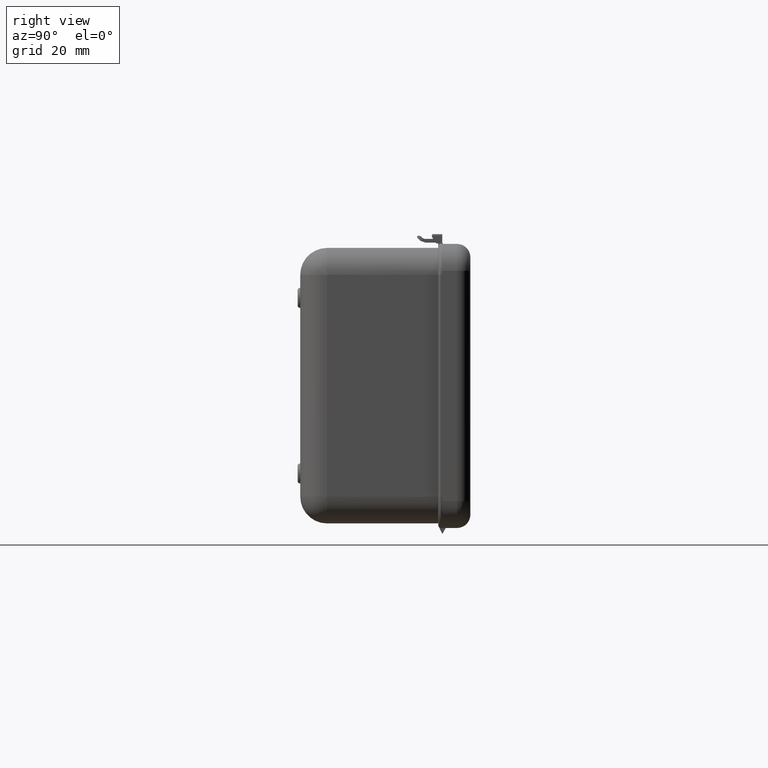
[diagram: clean part render]
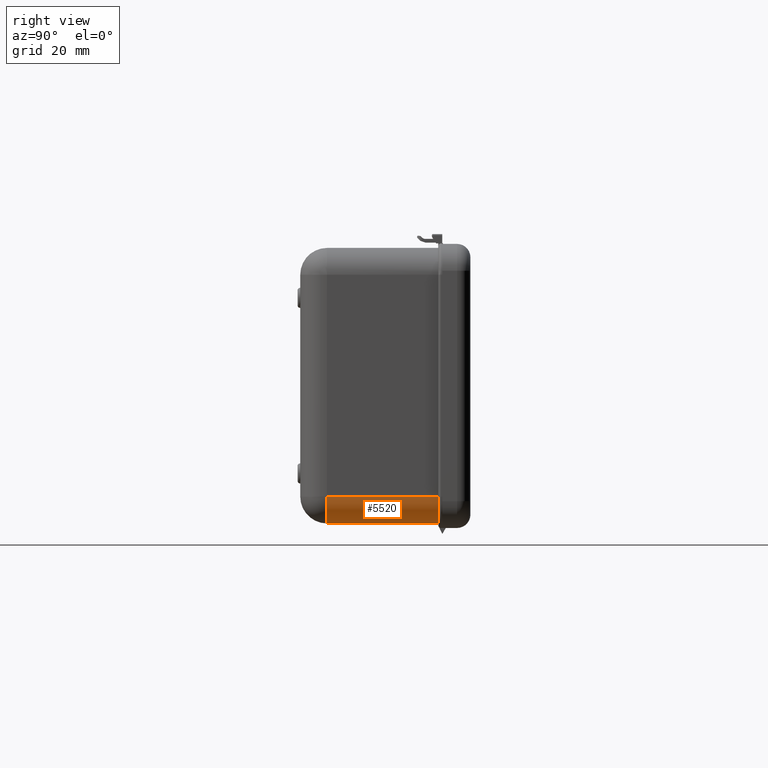
[diagram: same view with one face highlighted and labeled with its STEP entity id]
A machine part, right view. The second image highlights one B-rep face of the part: STEP entity #5520.
In plain terms, the highlighted cylindrical surface (edge-blend (fillet) strip) has radius 10 mm, axis along (0, 1, 0).
Its self-contained STEP definition (entity closure, byte-faithful):
#268 = AXIS2_PLACEMENT_3D ( 'NONE', #3481, #6883, #7710 ) ;
#489 = LINE ( 'NONE', #4133, #5873 ) ;
#731 = ORIENTED_EDGE ( 'NONE', *, *, #6963, .F. ) ;
#758 = LINE ( 'NONE', #2769, #5768 ) ;
#1176 = EDGE_CURVE ( 'NONE', #2924, #2805, #4488, .T. ) ;
#1194 = DIRECTION ( 'NONE',  ( 2.392722035830078479E-16, 1.000000000000000000, -0.0000000000000000000 ) ) ;
#1223 = CARTESIAN_POINT ( 'NONE',  ( 118.5000000000000284, -6.499999999999998224, -41.39999999999999858 ) ) ;
#1582 = DIRECTION ( 'NONE',  ( -1.000000000000000000, 0.0000000000000000000, 0.0000000000000000000 ) ) ;
#1638 = CARTESIAN_POINT ( 'NONE',  ( 108.5000000000000142, -48.00000000000000000, -51.39999999999999858 ) ) ;
#2735 = CARTESIAN_POINT ( 'NONE',  ( 118.5000000000000284, -6.499999999999998224, -41.39999999999999858 ) ) ;
#2769 = CARTESIAN_POINT ( 'NONE',  ( 108.5000000000000284, -2.596103408875635978E-14, -51.39999999999999858 ) ) ;
#2805 = VERTEX_POINT ( 'NONE', #6790 ) ;
#2924 = VERTEX_POINT ( 'NONE', #2735 ) ;
#3469 = VERTEX_POINT ( 'NONE', #5524 ) ;
#3481 = CARTESIAN_POINT ( 'NONE',  ( 108.5000000000000284, -2.596103408875635662E-14, -41.39999999999999858 ) ) ;
#3613 = EDGE_LOOP ( 'NONE', ( #5479, #731, #7958, #8936 ) ) ;
#3774 = EDGE_CURVE ( 'NONE', #3469, #9201, #5884, .T. ) ;
#4133 = CARTESIAN_POINT ( 'NONE',  ( 118.5000000000000284, -2.835375612458643352E-14, -41.39999999999999858 ) ) ;
#4168 = CARTESIAN_POINT ( 'NONE',  ( 108.5000000000000284, -6.499999999999997335, -51.39999999999999858 ) ) ;
#4248 = AXIS2_PLACEMENT_3D ( 'NONE', #7305, #5029, #1582 ) ;
#4488 =( BOUNDED_CURVE ( )  B_SPLINE_CURVE ( 3, ( #1223, #8296, #4726, #4168 ),
 .UNSPECIFIED., .F., .T. ) 
 B_SPLINE_CURVE_WITH_KNOTS ( ( 4, 4 ),
 ( 2.356194490192344837, 3.926990816987242283 ),
 .UNSPECIFIED. ) 
 CURVE ( )  GEOMETRIC_REPRESENTATION_ITEM ( )  RATIONAL_B_SPLINE_CURVE ( ( 1.000000000000000000, 0.8047378541243648264, 0.8047378541243648264, 1.000000000000000000 ) ) 
 REPRESENTATION_ITEM ( '' )  );
#4726 = CARTESIAN_POINT ( 'NONE',  ( 114.3578643762690774, -6.499999999999997335, -51.39999999999999858 ) ) ;
#5029 = DIRECTION ( 'NONE',  ( 2.392722035830078479E-16, 1.000000000000000000, -0.0000000000000000000 ) ) ;
#5479 = ORIENTED_EDGE ( 'NONE', *, *, #1176, .F. ) ;
#5520 = ADVANCED_FACE ( 'NONE', ( #7662 ), #6975, .T. ) ;
#5524 = CARTESIAN_POINT ( 'NONE',  ( 118.5000000000000142, -48.00000000000000000, -41.39999999999999858 ) ) ;
#5768 = VECTOR ( 'NONE', #9170, 1000.000000000000000 ) ;
#5873 = VECTOR ( 'NONE', #1194, 1000.000000000000000 ) ;
#5884 = CIRCLE ( 'NONE', #4248, 9.999999999999994671 ) ;
#5928 = EDGE_CURVE ( 'NONE', #2805, #9201, #758, .T. ) ;
#6790 = CARTESIAN_POINT ( 'NONE',  ( 108.5000000000000284, -6.499999999999997335, -51.39999999999999858 ) ) ;
#6883 = DIRECTION ( 'NONE',  ( 2.392722035830078479E-16, 1.000000000000000000, -0.0000000000000000000 ) ) ;
#6963 = EDGE_CURVE ( 'NONE', #3469, #2924, #489, .T. ) ;
#6975 = CYLINDRICAL_SURFACE ( 'NONE', #268, 9.999999999999994671 ) ;
#7305 = CARTESIAN_POINT ( 'NONE',  ( 108.5000000000000142, -48.00000000000000000, -41.39999999999999858 ) ) ;
#7662 = FACE_OUTER_BOUND ( 'NONE', #3613, .T. ) ;
#7710 = DIRECTION ( 'NONE',  ( -1.000000000000000000, 2.392722035830078479E-16, 0.0000000000000000000 ) ) ;
#7958 = ORIENTED_EDGE ( 'NONE', *, *, #3774, .T. ) ;
#8296 = CARTESIAN_POINT ( 'NONE',  ( 118.5000000000000284, -6.499999999999998224, -47.25786437626904757 ) ) ;
#8936 = ORIENTED_EDGE ( 'NONE', *, *, #5928, .F. ) ;
#9170 = DIRECTION ( 'NONE',  ( -2.392722035830078479E-16, -1.000000000000000000, 0.0000000000000000000 ) ) ;
#9201 = VERTEX_POINT ( 'NONE', #1638 ) ;